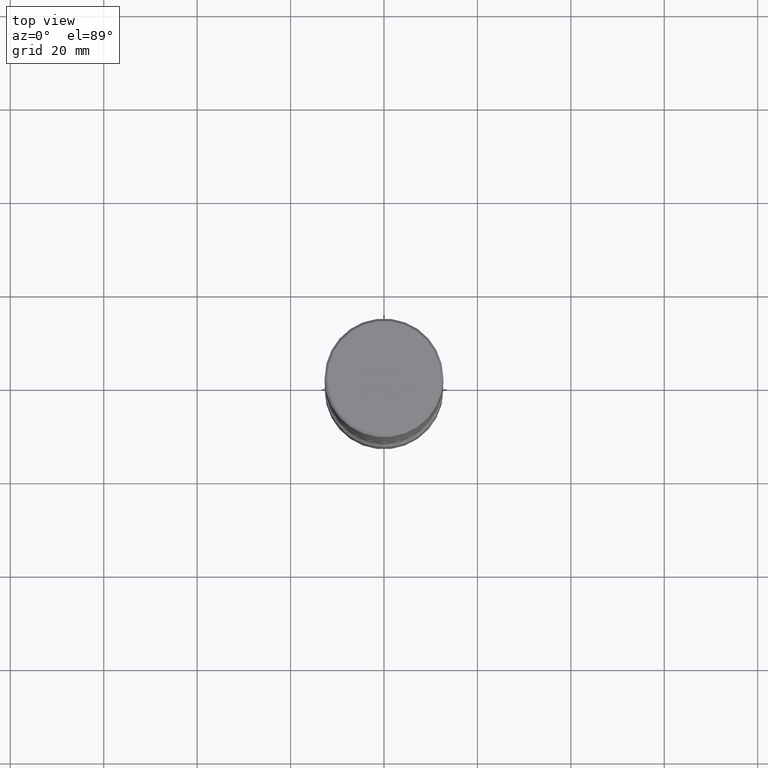
[diagram: clean part render]
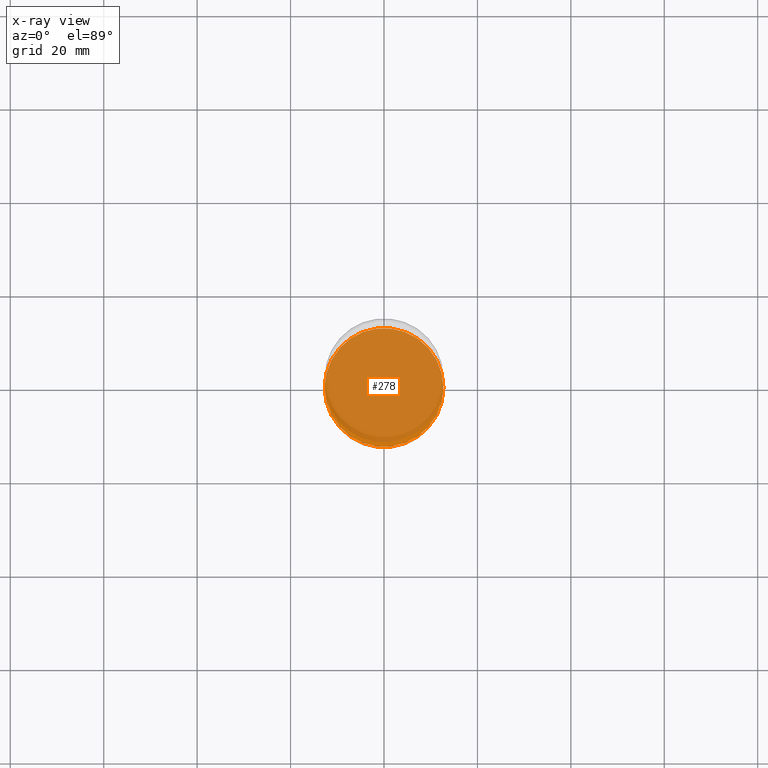
[diagram: x-ray — body ghosted, one internal face saturated and labeled with its STEP entity id]
A machine part, top view, then the same camera in x-ray: the body is ghosted and one INTERNAL B-rep face — a face not visible from any outside direction — is saturated and labeled: STEP entity #278.
In plain terms, the highlighted planar face has unit normal (0, -0, -1).
Its self-contained STEP definition (entity closure, byte-faithful):
#10 = DIRECTION ( 'NONE',  ( 1.000000000000000000, -6.982962677686267499E-15, 0.000000000000000000 ) ) ;
#40 = AXIS2_PLACEMENT_3D ( 'NONE', #352, #391, #202 ) ;
#41 = VERTEX_POINT ( 'NONE', #72 ) ;
#72 = CARTESIAN_POINT ( 'NONE',  ( 0.5000000000000002220, -2.007601769834807990E-14, -4.750000000000000888 ) ) ;
#85 = PLANE ( 'NONE',  #40 ) ;
#131 = DIRECTION ( 'NONE',  ( 1.000000000000000000, -6.982962677686267499E-15, 0.000000000000000000 ) ) ;
#161 = CIRCLE ( 'NONE', #270, 0.5000000000000002220 ) ;
#194 = AXIS2_PLACEMENT_3D ( 'NONE', #212, #558, #10 ) ;
#202 = DIRECTION ( 'NONE',  ( -1.000000000000000000, 6.982962677686265922E-15, -4.876176775795935793E-29 ) ) ;
#212 = CARTESIAN_POINT ( 'NONE',  ( 1.161597682937940108E-28, -1.658453635950494339E-14, -4.750000000000000888 ) ) ;
#265 = CIRCLE ( 'NONE', #194, 0.5000000000000002220 ) ;
#267 = ORIENTED_EDGE ( 'NONE', *, *, #386, .T. ) ;
#270 = AXIS2_PLACEMENT_3D ( 'NONE', #349, #290, #131 ) ;
#278 = ADVANCED_FACE ( 'NONE', ( #480 ), #85, .F. ) ;
#281 = VERTEX_POINT ( 'NONE', #308 ) ;
#290 = DIRECTION ( 'NONE',  ( -2.445468806185136597E-29, 3.491481338843145583E-15, 1.000000000000000000 ) ) ;
#302 = EDGE_CURVE ( 'NONE', #41, #281, #161, .T. ) ;
#308 = CARTESIAN_POINT ( 'NONE',  ( -0.5000000000000002220, -1.505688185723346233E-14, -4.750000000000000888 ) ) ;
#349 = CARTESIAN_POINT ( 'NONE',  ( 1.161597682937940108E-28, -1.658453635950494339E-14, -4.750000000000000888 ) ) ;
#352 = CARTESIAN_POINT ( 'NONE',  ( 1.161597682937940108E-28, -1.658453635950494339E-14, -4.750000000000000888 ) ) ;
#386 = EDGE_CURVE ( 'NONE', #281, #41, #265, .T. ) ;
#391 = DIRECTION ( 'NONE',  ( 2.438088387897960049E-29, -3.491481338843145188E-15, -1.000000000000000000 ) ) ;
#427 = EDGE_LOOP ( 'NONE', ( #469, #267 ) ) ;
#469 = ORIENTED_EDGE ( 'NONE', *, *, #302, .T. ) ;
#480 = FACE_OUTER_BOUND ( 'NONE', #427, .T. ) ;
#558 = DIRECTION ( 'NONE',  ( -2.445468806185136597E-29, 3.491481338843145583E-15, 1.000000000000000000 ) ) ;